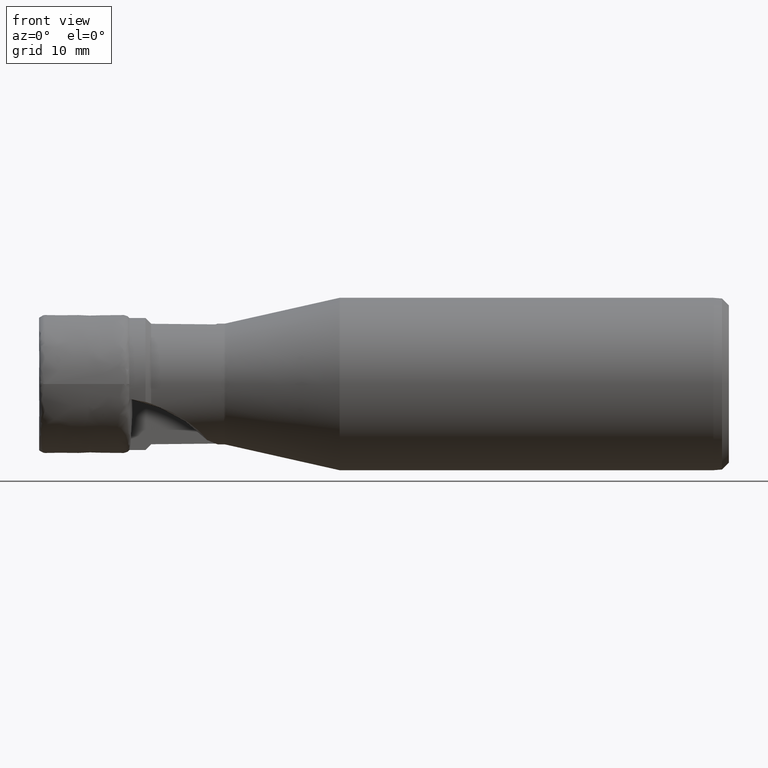
[diagram: clean part render]
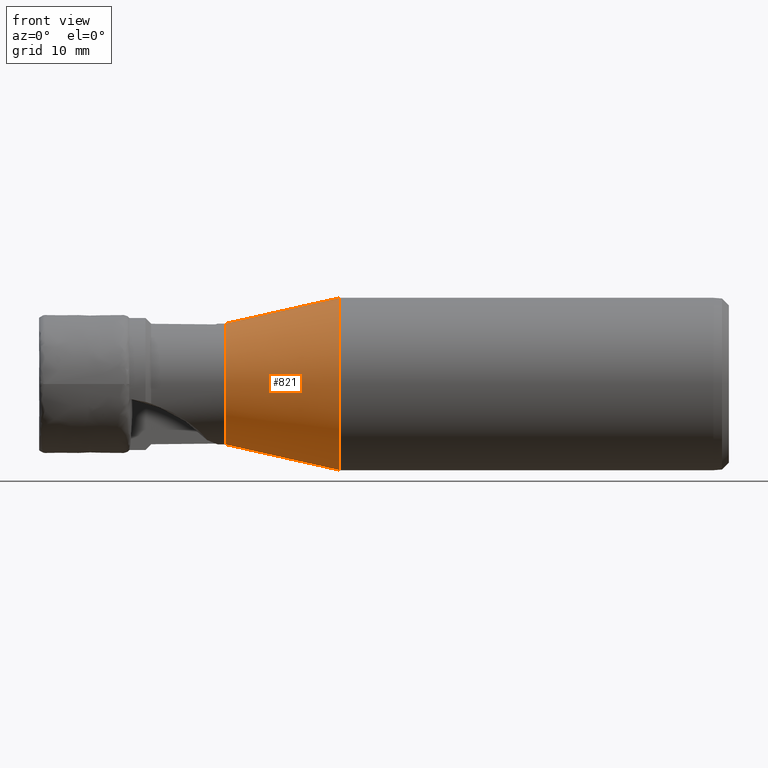
[diagram: same view with one face highlighted and labeled with its STEP entity id]
A machine part, front view. The second image highlights one B-rep face of the part: STEP entity #821.
In plain terms, the highlighted conical surface has half-angle 12.688 deg.
Its self-contained STEP definition (entity closure, byte-faithful):
#130 = DIRECTION ( 'NONE',  ( 0.9755792015757568400, 2.689911575508335300E-017, 0.2196479488927874100 ) ) ;
#134 = CARTESIAN_POINT ( 'NONE',  ( 43.09999999999999400, 1.543054966925665100E-015, 12.60000000000000000 ) ) ;
#163 = DIRECTION ( 'NONE',  ( 0.9755792015757568400, 0.0000000000000000000, -0.2196479488927874100 ) ) ;
#245 = CARTESIAN_POINT ( 'NONE',  ( 43.09999999999999400, 0.0000000000000000000, -12.60000000000000000 ) ) ;
#403 = EDGE_LOOP ( 'NONE', ( #591, #540, #511, #579 ) ) ;
#511 = ORIENTED_EDGE ( 'NONE', *, *, #1626, .T. ) ;
#540 = ORIENTED_EDGE ( 'NONE', *, *, #1331, .F. ) ;
#579 = ORIENTED_EDGE ( 'NONE', *, *, #1776, .F. ) ;
#591 = ORIENTED_EDGE ( 'NONE', *, *, #1656, .F. ) ;
#649 = AXIS2_PLACEMENT_3D ( 'NONE', #1488, #1546, #1735 ) ;
#672 = AXIS2_PLACEMENT_3D ( 'NONE', #3233, #3230, #3026 ) ;
#821 = ADVANCED_FACE ( 'NONE', ( #1294 ), #1298, .T. ) ;
#1027 = CARTESIAN_POINT ( 'NONE',  ( 42.65584415584415000, 1.530808498934191500E-015, 12.50000000000000000 ) ) ;
#1075 = CARTESIAN_POINT ( 'NONE',  ( 26.10846640339079600, 0.0000000000000000000, -8.774420798424245000 ) ) ;
#1085 = CARTESIAN_POINT ( 'NONE',  ( 42.65584415584415000, 0.0000000000000000000, -12.50000000000000000 ) ) ;
#1161 = CARTESIAN_POINT ( 'NONE',  ( 26.10846640339079600, 1.302682566725206500E-015, 8.774420798424245000 ) ) ;
#1294 = FACE_OUTER_BOUND ( 'NONE', #403, .T. ) ;
#1298 = CONICAL_SURFACE ( 'NONE', #1769, 12.60000000000000000, 0.2214535921416472800 ) ;
#1331 = EDGE_CURVE ( 'NONE', #1979, #1912, #2088, .T. ) ;
#1488 = CARTESIAN_POINT ( 'NONE',  ( 26.10846640339079600, 0.0000000000000000000, 0.0000000000000000000 ) ) ;
#1546 = DIRECTION ( 'NONE',  ( -1.000000000000000000, -0.0000000000000000000, -0.0000000000000000000 ) ) ;
#1626 = EDGE_CURVE ( 'NONE', #1979, #1884, #2097, .T. ) ;
#1656 = EDGE_CURVE ( 'NONE', #1912, #1867, #2083, .T. ) ;
#1735 = DIRECTION ( 'NONE',  ( 0.0000000000000000000, 0.0000000000000000000, 1.000000000000000000 ) ) ;
#1769 = AXIS2_PLACEMENT_3D ( 'NONE', #2452, #2449, #2486 ) ;
#1776 = EDGE_CURVE ( 'NONE', #1867, #1884, #2062, .T. ) ;
#1867 = VERTEX_POINT ( 'NONE', #1027 ) ;
#1884 = VERTEX_POINT ( 'NONE', #1085 ) ;
#1912 = VERTEX_POINT ( 'NONE', #1161 ) ;
#1979 = VERTEX_POINT ( 'NONE', #1075 ) ;
#2017 = VECTOR ( 'NONE', #130, 1000.000000000000300 ) ;
#2062 = CIRCLE ( 'NONE', #672, 12.50000000000000000 ) ;
#2065 = VECTOR ( 'NONE', #163, 1000.000000000000300 ) ;
#2083 = LINE ( 'NONE', #134, #2017 ) ;
#2088 = CIRCLE ( 'NONE', #649, 8.774420798424245000 ) ;
#2097 = LINE ( 'NONE', #245, #2065 ) ;
#2449 = DIRECTION ( 'NONE',  ( 1.000000000000000000, 0.0000000000000000000, 0.0000000000000000000 ) ) ;
#2452 = CARTESIAN_POINT ( 'NONE',  ( 43.09999999999999400, 0.0000000000000000000, 0.0000000000000000000 ) ) ;
#2486 = DIRECTION ( 'NONE',  ( 0.0000000000000000000, 0.0000000000000000000, -1.000000000000000000 ) ) ;
#3026 = DIRECTION ( 'NONE',  ( 0.0000000000000000000, 0.0000000000000000000, -1.000000000000000000 ) ) ;
#3230 = DIRECTION ( 'NONE',  ( 1.000000000000000000, 0.0000000000000000000, 0.0000000000000000000 ) ) ;
#3233 = CARTESIAN_POINT ( 'NONE',  ( 42.65584415584415000, 0.0000000000000000000, 0.0000000000000000000 ) ) ;